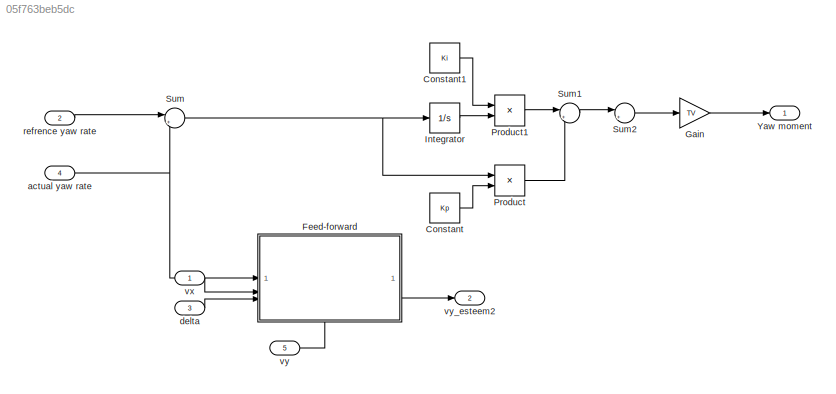
MODEL slx_05f763beb5dc
KIND model
CONFIG AbsTol = auto
CONFIG EnableMultiTasking = off
CONFIG FixedStep = Ts
CONFIG MaxStep = auto
CONFIG MinStep = auto
CONFIG RelTol = 1e-3
CONFIG SampleTimeConstraint = Unconstrained
CONFIG SolverName = FixedStepAuto
CONFIG StartTime = 0.0
CONFIG StopTime = 10.0
BLOCK [Constant] Constant
  Value = Kp
BLOCK [Constant] Constant1
  Value = Ki
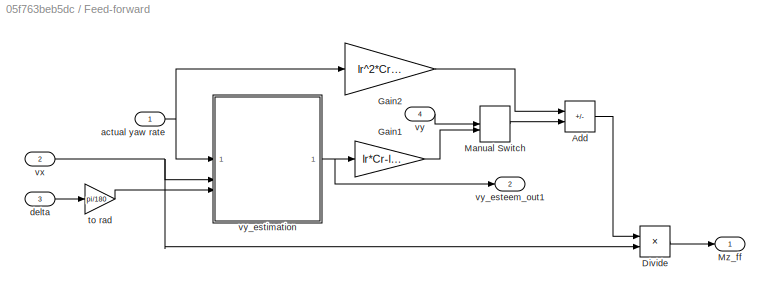
BLOCK [SubSystem] Feed-forward
  NameLocation = top
  PortSchema = {"entries":[{"content":{"sides":[{"content":{"connectorIds":["In1","In2","In3"]},"type":"ConnectorPlacement.EquallySpacedRectSide","uuid":"af8368cf-4f84-4250-9673-79f62898b3cc"},{"content":{"connectorIds":["Out1","Out2"],"side":"RIGHT"},"type":"ConnectorPlacement.EquallySpacedRectSide","uuid":"09f02962-5c7c-4455-ad81-befc240d6e55"},{"content":{"side":"TOP"},"type":"ConnectorPlacement.EquallySpaced...<+390ch>
BLOCK [Sum] Feed-forward/Add
  IconShape = rectangular
  Inputs = +-
BLOCK [Product] Feed-forward/Divide
  Inputs = */
BLOCK [Gain] Feed-forward/Gain1
  Gain = lr*Cr-lf*Cf
BLOCK [Gain] Feed-forward/Gain2
  Gain = lr^2*Cr+lf^2*Cf
BLOCK [ManualSwitch] Feed-forward/Manual Switch
BLOCK [Outport] Feed-forward/Mz_ff
BLOCK [Inport] Feed-forward/actual yaw rate
BLOCK [Inport] Feed-forward/delta
  Port = 3
BLOCK [Gain] Feed-forward/to rad
  Gain = pi/180
BLOCK [Inport] Feed-forward/vx
  Port = 2
BLOCK [Inport] Feed-forward/vy
  Port = 4
BLOCK [Outport] Feed-forward/vy_esteem_out1
  Port = 2
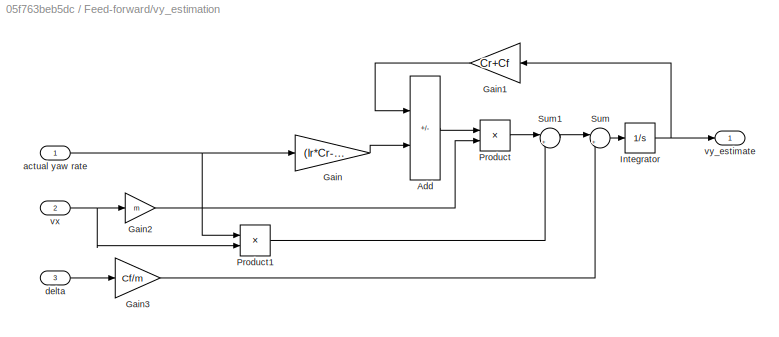
BLOCK [SubSystem] Feed-forward/vy_estimation
BLOCK [Sum] Feed-forward/vy_estimation/Add
  IconShape = rectangular
  Inputs = -+
BLOCK [Gain] Feed-forward/vy_estimation/Gain
  Gain = (lr*Cr-lf*Cf)
BLOCK [Gain] Feed-forward/vy_estimation/Gain1
  Gain = Cr+Cf
BLOCK [Gain] Feed-forward/vy_estimation/Gain2
  Gain = m
BLOCK [Gain] Feed-forward/vy_estimation/Gain3
  Gain = Cf/m
BLOCK [Integrator] Feed-forward/vy_estimation/Integrator
BLOCK [Product] Feed-forward/vy_estimation/Product
  Inputs = */
BLOCK [Product] Feed-forward/vy_estimation/Product1
BLOCK [Sum] Feed-forward/vy_estimation/Sum
  Inputs = |++
BLOCK [Sum] Feed-forward/vy_estimation/Sum1
  Inputs = |+-
BLOCK [Inport] Feed-forward/vy_estimation/actual yaw rate
BLOCK [Inport] Feed-forward/vy_estimation/delta
  Port = 3
BLOCK [Inport] Feed-forward/vy_estimation/vx
  Port = 2
BLOCK [Outport] Feed-forward/vy_estimation/vy_estimate
BLOCK [Gain] Gain
  Gain = TV
BLOCK [Integrator] Integrator
BLOCK [Product] Product
BLOCK [Product] Product1
BLOCK [Sum] Sum
  Inputs = |+-
BLOCK [Sum] Sum1
  Inputs = |++
BLOCK [Sum] Sum2
  Inputs = |++
BLOCK [Outport] Yaw moment
BLOCK [Inport] actual yaw rate
  NameLocation = top
  Port = 4
BLOCK [Inport] delta
  Port = 3
BLOCK [Inport] refrence yaw rate
  Port = 2
BLOCK [Inport] vx
BLOCK [Inport] vy
  Port = 5
BLOCK [Outport] vy_esteem2
  Port = 2
LINE Constant1:1 -> Product1:1
LINE Constant:1 -> Product:2
LINE Feed-forward/Add:1 -> Feed-forward/Divide:1
LINE Feed-forward/Divide:1 -> Feed-forward/Mz_ff:1
LINE Feed-forward/Gain1:1 -> Feed-forward/Manual Switch:2
LINE Feed-forward/Gain2:1 -> Feed-forward/Add:1
LINE Feed-forward/Manual Switch:1 -> Feed-forward/Add:2
NET Feed-forward/actual yaw rate:1 -> Feed-forward/Gain2:1, Feed-forward/vy_estimation:1
LINE Feed-forward/delta:1 -> Feed-forward/to rad:1
LINE Feed-forward/to rad:1 -> Feed-forward/vy_estimation:3
NET Feed-forward/vx:1 -> Feed-forward/Divide:2, Feed-forward/vy_estimation:2
LINE Feed-forward/vy:1 -> Feed-forward/Manual Switch:1
LINE Feed-forward/vy_estimation/Add:1 -> Feed-forward/vy_estimation/Product:1
LINE Feed-forward/vy_estimation/Gain1:1 -> Feed-forward/vy_estimation/Add:1
LINE Feed-forward/vy_estimation/Gain2:1 -> Feed-forward/vy_estimation/Product:2
LINE Feed-forward/vy_estimation/Gain3:1 -> Feed-forward/vy_estimation/Sum:2
LINE Feed-forward/vy_estimation/Gain:1 -> Feed-forward/vy_estimation/Add:2
NET Feed-forward/vy_estimation/Integrator:1 -> Feed-forward/vy_estimation/Gain1:1, Feed-forward/vy_estimation/vy_estimate:1
LINE Feed-forward/vy_estimation/Product1:1 -> Feed-forward/vy_estimation/Sum1:2
LINE Feed-forward/vy_estimation/Product:1 -> Feed-forward/vy_estimation/Sum1:1
LINE Feed-forward/vy_estimation/Sum1:1 -> Feed-forward/vy_estimation/Sum:1
LINE Feed-forward/vy_estimation/Sum:1 -> Feed-forward/vy_estimation/Integrator:1
NET Feed-forward/vy_estimation/actual yaw rate:1 -> Feed-forward/vy_estimation/Gain:1, Feed-forward/vy_estimation/Product1:1
LINE Feed-forward/vy_estimation/delta:1 -> Feed-forward/vy_estimation/Gain3:1
NET Feed-forward/vy_estimation/vx:1 -> Feed-forward/vy_estimation/Gain2:1, Feed-forward/vy_estimation/Product1:2
NET Feed-forward/vy_estimation:1 -> Feed-forward/Gain1:1, Feed-forward/vy_esteem_out1:1
LINE Feed-forward:2 -> vy_esteem2:1
LINE Gain:1 -> Yaw moment:1
LINE Integrator:1 -> Product1:2
LINE Product1:1 -> Sum1:1
LINE Product:1 -> Sum1:2
LINE Sum1:1 -> Sum2:1
LINE Sum2:1 -> Gain:1
NET Sum:1 -> Integrator:1, Product:1
NET actual yaw rate:1 -> Feed-forward:1, Sum:2
LINE delta:1 -> Feed-forward:3
LINE refrence yaw rate:1 -> Sum:1
LINE vx:1 -> Feed-forward:2
LINE vy:1 -> Feed-forward:4
note: NET lines group one-source signal fan-out (src -> all destinations, sorted); 1:1 wires keep LINE
